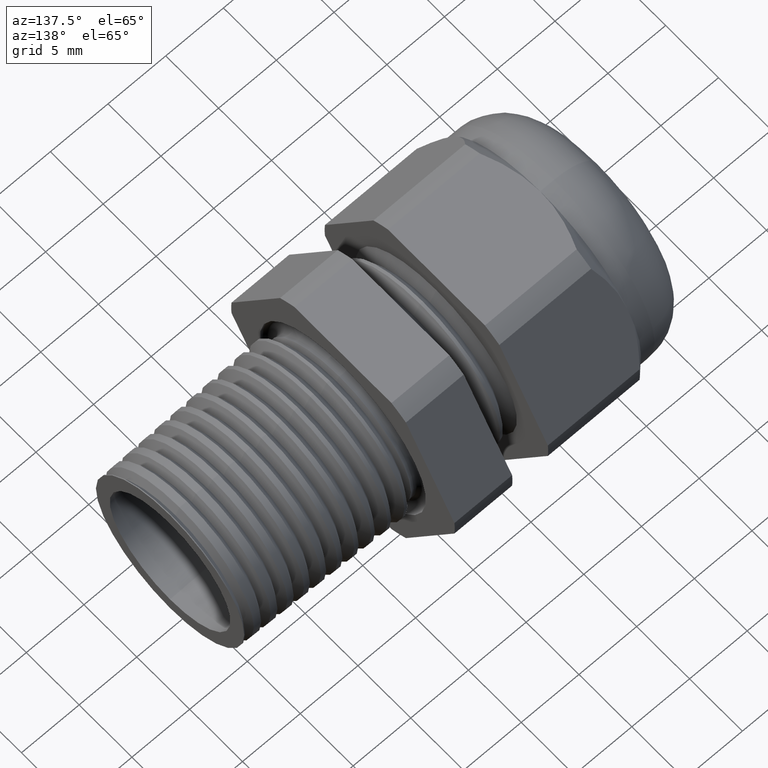
[diagram: clean part render]
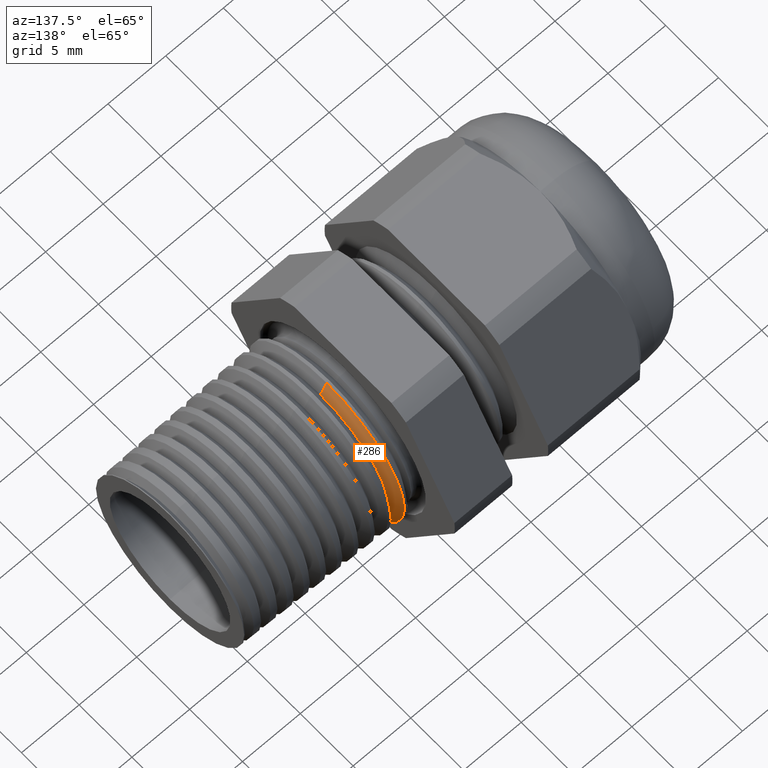
[diagram: same view with one face highlighted and labeled with its STEP entity id]
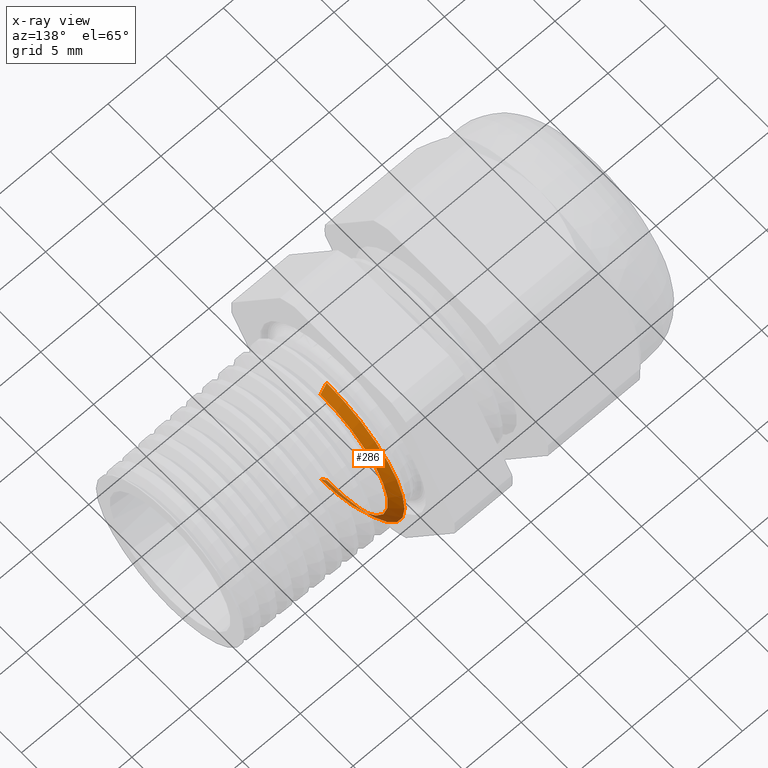
[diagram: x-ray of the same camera — body ghosted, the highlighted face saturated]
A machine part, auxiliary view. The second image highlights one B-rep face of the part: STEP entity #286.
The next image is the same camera in x-ray: the body ghosted, the highlighted face saturated — about 6% of this face is hidden behind the body in this view.
In plain terms, the highlighted conical surface has half-angle 61.5 deg.
Its self-contained STEP definition (entity closure, byte-faithful):
#274 = EDGE_CURVE ( 'NONE', #290, #300, #1855, .T. ) ;
#279 = ORIENTED_EDGE ( 'NONE', *, *, #288, .F. ) ;
#280 = ORIENTED_EDGE ( 'NONE', *, *, #274, .F. ) ;
#283 = ORIENTED_EDGE ( 'NONE', *, *, #291, .T. ) ;
#285 = VERTEX_POINT ( 'NONE', #1890 ) ;
#286 = ADVANCED_FACE ( 'NONE', ( #1889 ), #1888, .T. ) ;
#287 = EDGE_LOOP ( 'NONE', ( #279, #283, #299, #280 ) ) ;
#288 = EDGE_CURVE ( 'NONE', #292, #290, #1887, .T. ) ;
#290 = VERTEX_POINT ( 'NONE', #1878 ) ;
#291 = EDGE_CURVE ( 'NONE', #292, #285, #1877, .T. ) ;
#292 = VERTEX_POINT ( 'NONE', #1873 ) ;
#298 = EDGE_CURVE ( 'NONE', #285, #300, #1927, .T. ) ;
#299 = ORIENTED_EDGE ( 'NONE', *, *, #298, .T. ) ;
#300 = VERTEX_POINT ( 'NONE', #1923 ) ;
#1847 = DIRECTION ( 'NONE',  ( -0.4771587602596063500, 0.0000000000000000000, 0.8788171126619663800 ) ) ;
#1848 = VECTOR ( 'NONE', #1847, 39.37007874015748900 ) ;
#1849 = CARTESIAN_POINT ( 'NONE',  ( -0.2550000000000000000, 0.0000000000000000000, 0.2916514333516844200 ) ) ;
#1855 = LINE ( 'NONE', #1849, #1848 ) ;
#1870 = CARTESIAN_POINT ( 'NONE',  ( -0.2542067428875575100, 0.0000000000000000000, 0.0000000000000000000 ) ) ;
#1873 = CARTESIAN_POINT ( 'NONE',  ( -0.2329609809054343500, 3.314206799727821000E-017, -0.2510606096265777800 ) ) ;
#1874 = DIRECTION ( 'NONE',  ( -0.4771587602596063500, 1.076240564057396000E-016, -0.8788171126619663800 ) ) ;
#1875 = VECTOR ( 'NONE', #1874, 39.37007874015748900 ) ;
#1876 = CARTESIAN_POINT ( 'NONE',  ( -0.2550000000000000000, 3.571699943208779500E-017, -0.2916514333516844200 ) ) ;
#1877 = LINE ( 'NONE', #1876, #1875 ) ;
#1878 = CARTESIAN_POINT ( 'NONE',  ( -0.2329609809054343500, 0.0000000000000000000, 0.2510606096265777800 ) ) ;
#1879 = DIRECTION ( 'NONE',  ( 0.0000000000000000000, 0.0000000000000000000, -1.000000000000000000 ) ) ;
#1880 = DIRECTION ( 'NONE',  ( 1.000000000000000000, 0.0000000000000000000, 0.0000000000000000000 ) ) ;
#1881 = CARTESIAN_POINT ( 'NONE',  ( -0.2329609809054343500, 0.0000000000000000000, 0.0000000000000000000 ) ) ;
#1882 = AXIS2_PLACEMENT_3D ( 'NONE', #1881, #1880, #1879 ) ;
#1883 = DIRECTION ( 'NONE',  ( 0.0000000000000000000, 0.0000000000000000000, 1.000000000000000000 ) ) ;
#1884 = DIRECTION ( 'NONE',  ( -1.000000000000000000, 0.0000000000000000000, 0.0000000000000000000 ) ) ;
#1885 = CARTESIAN_POINT ( 'NONE',  ( -0.2550000000000000000, 0.0000000000000000000, 0.0000000000000000000 ) ) ;
#1886 = AXIS2_PLACEMENT_3D ( 'NONE', #1885, #1884, #1883 ) ;
#1887 = CIRCLE ( 'NONE', #1882, 0.2510606096265777800 ) ;
#1888 = CONICAL_SURFACE ( 'NONE', #1886, 0.2916514333516844200, 1.073377489976514900 ) ;
#1889 = FACE_OUTER_BOUND ( 'NONE', #287, .T. ) ;
#1890 = CARTESIAN_POINT ( 'NONE',  ( -0.2542067428875575100, 3.555350545289497800E-017, -0.2901904354968489200 ) ) ;
#1923 = CARTESIAN_POINT ( 'NONE',  ( -0.2542067428875575100, 0.0000000000000000000, 0.2901904354968489200 ) ) ;
#1924 = DIRECTION ( 'NONE',  ( 0.0000000000000000000, 0.0000000000000000000, 1.000000000000000000 ) ) ;
#1925 = DIRECTION ( 'NONE',  ( 1.000000000000000000, 0.0000000000000000000, 0.0000000000000000000 ) ) ;
#1926 = AXIS2_PLACEMENT_3D ( 'NONE', #1870, #1925, #1924 ) ;
#1927 = CIRCLE ( 'NONE', #1926, 0.2901904354968489200 ) ;